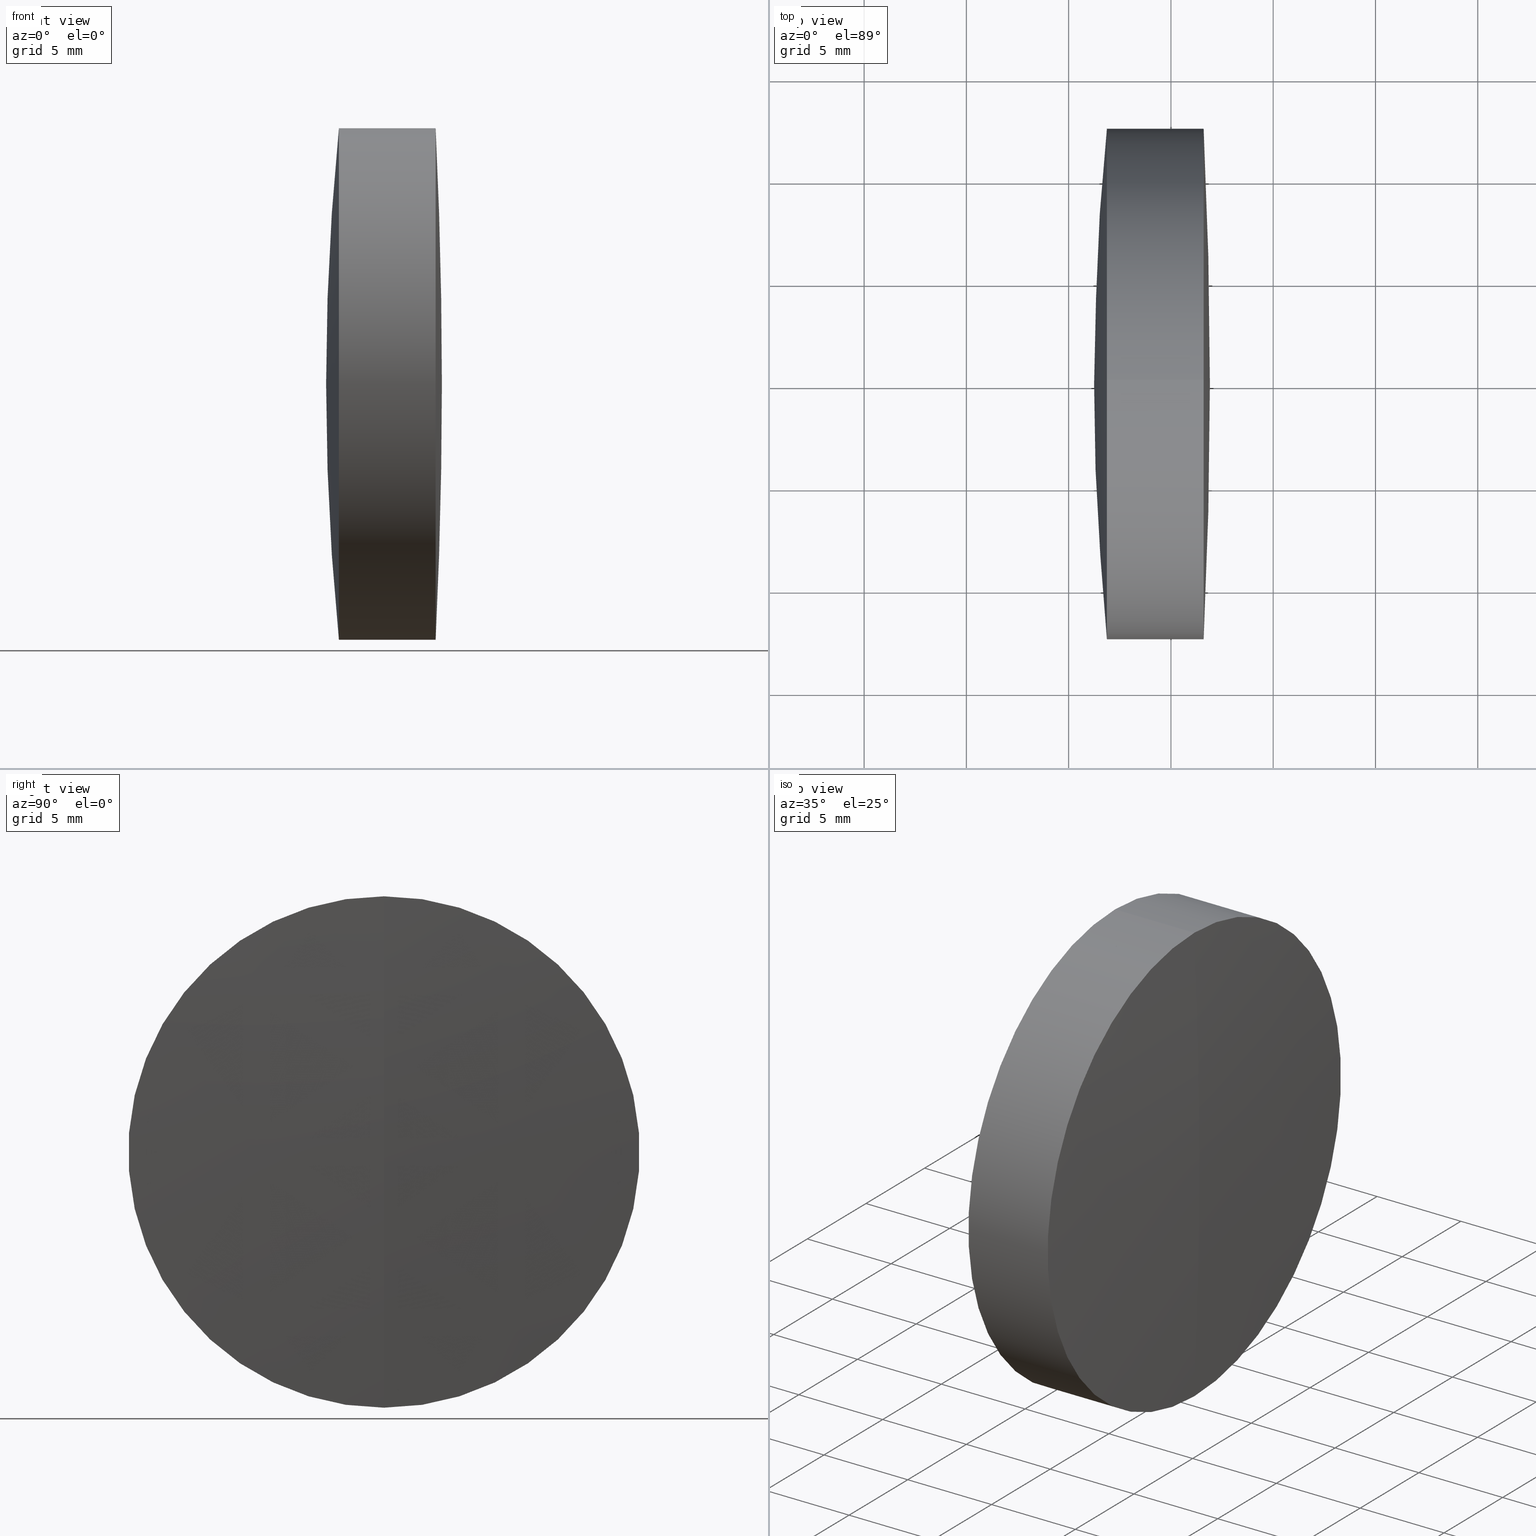
[diagram: canonical four-view strip — front | top / right | iso, engineering-drawing reading convention]
A machine part, canonical four-view strip (front | top / right | iso — engineering-drawing reading convention). The complete STEP part file that produces these views, byte-faithful:
ISO-10303-21;
HEADER;
FILE_DESCRIPTION (( 'STEP AP214' ),
    '1' );
FILE_NAME ('145045.STEP',
    '2019-05-12T06:27:24',
    ( 'user' ),
    ( '΢���й�' ),
    'SwSTEP 2.0',
    'SolidWorks 2016',
    '' );
FILE_SCHEMA (( 'AUTOMOTIVE_DESIGN' ));
ENDSEC;

DATA;
#1 = ORIENTED_EDGE ( 'NONE', *, *, #128, .F. ) ;
#2 = EDGE_LOOP ( 'NONE', ( #1, #242, #50 ) ) ;
#3 = ADVANCED_FACE ( 'NONE', ( #124 ), #106, .T. ) ;
#4 = DIRECTION ( 'NONE',  ( 0.0000000000000000000, 1.000000000000000000, 0.0000000000000000000 ) ) ;
#5 = DIRECTION ( 'NONE',  ( 0.0000000000000000000, 0.0000000000000000000, 1.000000000000000000 ) ) ;
#6 = AXIS2_PLACEMENT_3D ( 'NONE', #53, #20, #36 ) ;
#7 = DIRECTION ( 'NONE',  ( -1.000000000000000000, -0.0000000000000000000, -0.0000000000000000000 ) ) ;
#8 = FACE_OUTER_BOUND ( 'NONE', #17, .T. ) ;
#9 = EDGE_CURVE ( 'NONE', #317, #117, #212, .T. ) ;
#10 = STYLED_ITEM ( 'NONE', ( #11 ), #26 ) ;
#11 = PRESENTATION_STYLE_ASSIGNMENT (( #246 ) ) ;
#12 = DIRECTION ( 'NONE',  ( -0.0000000000000000000, 1.000000000000000000, 1.224646799147353200E-016 ) ) ;
#13 = UNCERTAINTY_MEASURE_WITH_UNIT (LENGTH_MEASURE( 1.000000000000000100E-005 ), #40, 'distance_accuracy_value', 'NONE');
#14 = SPHERICAL_SURFACE ( 'NONE', #122, 80.01500000000000100 ) ;
#15 = DIRECTION ( 'NONE',  ( -1.000000000000000000, -0.0000000000000000000, -0.0000000000000000000 ) ) ;
#16 = FACE_OUTER_BOUND ( 'NONE', #81, .T. ) ;
#17 = EDGE_LOOP ( 'NONE', ( #144, #111, #100 ) ) ;
#18 = AXIS2_PLACEMENT_3D ( 'NONE', #205, #228, #119 ) ;
#19 = ORIENTED_EDGE ( 'NONE', *, *, #152, .F. ) ;
#20 = DIRECTION ( 'NONE',  ( -1.000000000000000000, -0.0000000000000000000, -0.0000000000000000000 ) ) ;
#21 = DIRECTION ( 'NONE',  ( 0.0000000000000000000, 0.0000000000000000000, -1.000000000000000000 ) ) ;
#22 = CARTESIAN_POINT ( 'NONE',  ( 91.87023339387808100, 0.0000000000000000000, 0.0000000000000000000 ) ) ;
#23 = ORIENTED_EDGE ( 'NONE', *, *, #35, .T. ) ;
#24 = CIRCLE ( 'NONE', #277, 80.01500000000000100 ) ;
#25 = DIRECTION ( 'NONE',  ( -1.000000000000000000, -0.0000000000000000000, -0.0000000000000000000 ) ) ;
#26 = MANIFOLD_SOLID_BREP ( '��ת1', #184 ) ;
#27 = CARTESIAN_POINT ( 'NONE',  ( 93.91225861228011200, 0.0000000000000000000, 12.50000000000000000 ) ) ;
#28 = AXIS2_PLACEMENT_3D ( 'NONE', #196, #299, #135 ) ;
#29 = DIRECTION ( 'NONE',  ( -0.0000000000000000000, -1.000000000000000000, -0.0000000000000000000 ) ) ;
#30 = VERTEX_POINT ( 'NONE', #134 ) ;
#31 = CARTESIAN_POINT ( 'NONE',  ( 216.4446689735747200, 0.0000000000000000000, 3.752398377835878400E-016 ) ) ;
#32 = FILL_AREA_STYLE_COLOUR ( '', #204 ) ;
#33 = CARTESIAN_POINT ( 'NONE',  ( 14.87966897357473400, 0.0000000000000000000, 1.355252715606880500E-017 ) ) ;
#34 = PRODUCT_DEFINITION_SHAPE ( 'NONE', 'NONE',  #222 ) ;
#35 = EDGE_CURVE ( 'NONE', #59, #88, #249, .T. ) ;
#36 = DIRECTION ( 'NONE',  ( 0.0000000000000000000, 0.0000000000000000000, 1.000000000000000000 ) ) ;
#37 = ORIENTED_EDGE ( 'NONE', *, *, #75, .F. ) ;
#38 = ORIENTED_EDGE ( 'NONE', *, *, #341, .T. ) ;
#39 = CARTESIAN_POINT ( 'NONE',  ( -0.5519199926577972300, 0.0000000000000000000, 12.49999999999999300 ) ) ;
#40 =( LENGTH_UNIT ( ) NAMED_UNIT ( * ) SI_UNIT ( .MILLI., .METRE. ) );
#41 = CIRCLE ( 'NONE', #149, 12.50000000000000000 ) ;
#42 = AXIS2_PLACEMENT_3D ( 'NONE', #98, #25, #80 ) ;
#43 = CIRCLE ( 'NONE', #194, 12.50000000000000200 ) ;
#44 = ORIENTED_EDGE ( 'NONE', *, *, #128, .T. ) ;
#45 = VERTEX_POINT ( 'NONE', #56 ) ;
#46 = DIRECTION ( 'NONE',  ( 0.0000000000000000000, 1.000000000000000000, -0.0000000000000000000 ) ) ;
#47 = EDGE_CURVE ( 'NONE', #93, #317, #288, .T. ) ;
#48 = STYLED_ITEM ( 'NONE', ( #276 ), #295 ) ;
#49 = FACE_OUTER_BOUND ( 'NONE', #301, .T. ) ;
#50 = ORIENTED_EDGE ( 'NONE', *, *, #161, .T. ) ;
#51 = ADVANCED_FACE ( 'NONE', ( #8 ), #289, .T. ) ;
#52 = EDGE_CURVE ( 'NONE', #117, #30, #273, .T. ) ;
#53 = CARTESIAN_POINT ( 'NONE',  ( 93.91225861228009800, 0.0000000000000000000, 0.0000000000000000000 ) ) ;
#54 =( NAMED_UNIT ( * ) PLANE_ANGLE_UNIT ( ) SI_UNIT ( $, .RADIAN. ) );
#55 = CIRCLE ( 'NONE', #86, 12.50000000000000200 ) ;
#56 = CARTESIAN_POINT ( 'NONE',  ( 91.87023339387808100, -1.530808498934183400E-015, 12.49999999999993400 ) ) ;
#57 =( LENGTH_UNIT ( ) NAMED_UNIT ( * ) SI_UNIT ( .MILLI., .METRE. ) );
#58 = FACE_OUTER_BOUND ( 'NONE', #252, .T. ) ;
#59 = VERTEX_POINT ( 'NONE', #115 ) ;
#60 = CARTESIAN_POINT ( 'NONE',  ( 14.87966897357473400, 0.0000000000000000000, 1.355252715606880500E-017 ) ) ;
#61 = CARTESIAN_POINT ( 'NONE',  ( 216.4446689735747200, 0.0000000000000000000, 3.752398377835878400E-016 ) ) ;
#62 =( NAMED_UNIT ( * ) SI_UNIT ( $, .STERADIAN. ) SOLID_ANGLE_UNIT ( ) );
#63 =( GEOMETRIC_REPRESENTATION_CONTEXT ( 3 ) GLOBAL_UNCERTAINTY_ASSIGNED_CONTEXT ( ( #308 ) ) GLOBAL_UNIT_ASSIGNED_CONTEXT ( ( #163, #201, #131 ) ) REPRESENTATION_CONTEXT ( 'NONE', 'WORKASPACE' ) );
#64 = CARTESIAN_POINT ( 'NONE',  ( -0.5519199926577972300, 1.530808498934190500E-015, -12.49999999999999300 ) ) ;
#65 = SURFACE_SIDE_STYLE ('',( #127 ) ) ;
#66 = ORIENTED_EDGE ( 'NONE', *, *, #218, .F. ) ;
#67 = SURFACE_STYLE_USAGE ( .BOTH. , #159 ) ;
#68 = CARTESIAN_POINT ( 'NONE',  ( 14.87966897357473400, 0.0000000000000000000, 1.355252715606880500E-017 ) ) ;
#69 = CIRCLE ( 'NONE', #71, 80.01500000000000100 ) ;
#70 = ORIENTED_EDGE ( 'NONE', *, *, #341, .F. ) ;
#71 = AXIS2_PLACEMENT_3D ( 'NONE', #168, #173, #320 ) ;
#72 = ORIENTED_EDGE ( 'NONE', *, *, #214, .T. ) ;
#73 = ORIENTED_EDGE ( 'NONE', *, *, #183, .F. ) ;
#74 = CIRCLE ( 'NONE', #315, 12.50000000000000000 ) ;
#75 = EDGE_CURVE ( 'NONE', #45, #88, #55, .T. ) ;
#76 = DIRECTION ( 'NONE',  ( 0.0000000000000000000, 0.0000000000000000000, 1.000000000000000000 ) ) ;
#77 = SPHERICAL_SURFACE ( 'NONE', #280, 80.01500000000000100 ) ;
#78 = AXIS2_PLACEMENT_3D ( 'NONE', #31, #29, #160 ) ;
#79 = DIRECTION ( 'NONE',  ( -0.0000000000000000000, -1.000000000000000000, -0.0000000000000000000 ) ) ;
#80 = DIRECTION ( 'NONE',  ( 0.0000000000000000000, 0.0000000000000000000, 1.000000000000000000 ) ) ;
#81 = EDGE_LOOP ( 'NONE', ( #340, #192, #70 ) ) ;
#82 = CARTESIAN_POINT ( 'NONE',  ( 96.59932540629262100, 0.0000000000000000000, 0.0000000000000000000 ) ) ;
#83 = DIRECTION ( 'NONE',  ( 0.0000000000000000000, 0.0000000000000000000, -1.000000000000000000 ) ) ;
#84 = APPLICATION_CONTEXT ( 'automotive_design' ) ;
#85 = ORIENTED_EDGE ( 'NONE', *, *, #287, .T. ) ;
#86 = AXIS2_PLACEMENT_3D ( 'NONE', #90, #261, #323 ) ;
#87 = DIRECTION ( 'NONE',  ( 0.0000000000000000000, 0.0000000000000000000, -1.000000000000000000 ) ) ;
#88 = VERTEX_POINT ( 'NONE', #223 ) ;
#89 = EDGE_LOOP ( 'NONE', ( #211, #274, #193, #268 ) ) ;
#90 = CARTESIAN_POINT ( 'NONE',  ( 91.87023339387808100, 0.0000000000000000000, 0.0000000000000000000 ) ) ;
#91 = CARTESIAN_POINT ( 'NONE',  ( 93.91225861228009800, 0.0000000000000000000, 0.0000000000000000000 ) ) ;
#92 = AXIS2_PLACEMENT_3D ( 'NONE', #147, #265, #130 ) ;
#93 = VERTEX_POINT ( 'NONE', #136 ) ;
#94 = ORIENTED_EDGE ( 'NONE', *, *, #275, .T. ) ;
#95 = ADVANCED_FACE ( 'NONE', ( #16 ), #176, .T. ) ;
#96 = LINE ( 'NONE', #241, #156 ) ;
#97 = SURFACE_STYLE_FILL_AREA ( #148 ) ;
#98 = CARTESIAN_POINT ( 'NONE',  ( -9.702612178336682500, 0.0000000000000000000, 0.0000000000000000000 ) ) ;
#99 = CIRCLE ( 'NONE', #6, 12.50000000000005200 ) ;
#100 = ORIENTED_EDGE ( 'NONE', *, *, #287, .F. ) ;
#101 = SPHERICAL_SURFACE ( 'NONE', #140, 80.01500000000000100 ) ;
#102 = DIRECTION ( 'NONE',  ( 0.0000000000000000000, 0.0000000000000000000, 1.000000000000000000 ) ) ;
#103 = CARTESIAN_POINT ( 'NONE',  ( 216.4446689735747200, 0.0000000000000000000, 3.752398377835878400E-016 ) ) ;
#104 = DIRECTION ( 'NONE',  ( 0.0000000000000000000, 0.0000000000000000000, 1.000000000000000000 ) ) ;
#105 = AXIS2_PLACEMENT_3D ( 'NONE', #258, #224, #343 ) ;
#106 = CYLINDRICAL_SURFACE ( 'NONE', #18, 12.50000000000000000 ) ;
#107 = EDGE_LOOP ( 'NONE', ( #85, #290, #143, #347 ) ) ;
#108 = CARTESIAN_POINT ( 'NONE',  ( -159.1073310264252700, 0.0000000000000000000, 0.0000000000000000000 ) ) ;
#109 = CARTESIAN_POINT ( 'NONE',  ( 93.91225861228009800, 0.0000000000000000000, 12.50000000000006400 ) ) ;
#110 = VERTEX_POINT ( 'NONE', #158 ) ;
#111 = ORIENTED_EDGE ( 'NONE', *, *, #152, .T. ) ;
#112 = DIRECTION ( 'NONE',  ( 0.0000000000000000000, 0.0000000000000000000, 1.000000000000000000 ) ) ;
#113 = AXIS2_PLACEMENT_3D ( 'NONE', #247, #267, #104 ) ;
#114 = DIRECTION ( 'NONE',  ( 0.0000000000000000000, 0.0000000000000000000, 1.000000000000000000 ) ) ;
#115 = CARTESIAN_POINT ( 'NONE',  ( 93.91225861228011200, 1.530808498934191500E-015, -12.50000000000000000 ) ) ;
#116 = CARTESIAN_POINT ( 'NONE',  ( 93.91225861228011200, 0.0000000000000000000, 0.0000000000000000000 ) ) ;
#117 = VERTEX_POINT ( 'NONE', #109 ) ;
#118 = CARTESIAN_POINT ( 'NONE',  ( 96.59932540629262100, 1.530808498934187000E-015, -12.49999999999993200 ) ) ;
#119 = DIRECTION ( 'NONE',  ( 0.0000000000000000000, 0.0000000000000000000, 1.000000000000000000 ) ) ;
#120 = ADVANCED_FACE ( 'NONE', ( #232 ), #14, .T. ) ;
#121 = VECTOR ( 'NONE', #316, 1000.000000000000000 ) ;
#122 = AXIS2_PLACEMENT_3D ( 'NONE', #68, #346, #114 ) ;
#123 = ADVANCED_FACE ( 'NONE', ( #206 ), #77, .F. ) ;
#124 = FACE_OUTER_BOUND ( 'NONE', #89, .T. ) ;
#125 = EDGE_CURVE ( 'NONE', #170, #30, #69, .T. ) ;
#126 = PRESENTATION_LAYER_ASSIGNMENT (  '', '', ( #10 ) ) ;
#127 = SURFACE_STYLE_FILL_AREA ( #233 ) ;
#128 = EDGE_CURVE ( 'NONE', #170, #117, #24, .T. ) ;
#129 = DIRECTION ( 'NONE',  ( -1.000000000000000000, -0.0000000000000000000, -0.0000000000000000000 ) ) ;
#130 = DIRECTION ( 'NONE',  ( 0.0000000000000000000, 0.0000000000000000000, 1.000000000000000000 ) ) ;
#131 =( NAMED_UNIT ( * ) SI_UNIT ( $, .STERADIAN. ) SOLID_ANGLE_UNIT ( ) );
#132 = CLOSED_SHELL ( 'NONE', ( #51, #302, #123, #329, #202, #209 ) ) ;
#133 = CYLINDRICAL_SURFACE ( 'NONE', #113, 12.49999999999999300 ) ;
#134 = CARTESIAN_POINT ( 'NONE',  ( 93.91225861228009800, 1.530808498934199200E-015, -12.50000000000006400 ) ) ;
#135 = DIRECTION ( 'NONE',  ( 1.000000000000000000, 0.0000000000000000000, 0.0000000000000000000 ) ) ;
#136 = CARTESIAN_POINT ( 'NONE',  ( 96.90466897357480000, 0.0000000000000000000, 1.567621381716561600E-014 ) ) ;
#137 = VERTEX_POINT ( 'NONE', #118 ) ;
#138 = FACE_OUTER_BOUND ( 'NONE', #169, .T. ) ;
#139 = DIRECTION ( 'NONE',  ( 0.0000000000000000000, 0.0000000000000000000, 1.000000000000000000 ) ) ;
#140 = AXIS2_PLACEMENT_3D ( 'NONE', #150, #142, #139 ) ;
#141 = CARTESIAN_POINT ( 'NONE',  ( -9.702612178336682500, 1.530808498934191500E-015, -12.50000000000000000 ) ) ;
#142 = DIRECTION ( 'NONE',  ( 0.0000000000000000000, 1.000000000000000000, 0.0000000000000000000 ) ) ;
#143 = ORIENTED_EDGE ( 'NONE', *, *, #52, .F. ) ;
#144 = ORIENTED_EDGE ( 'NONE', *, *, #47, .F. ) ;
#145 = DIRECTION ( 'NONE',  ( 0.0000000000000000000, 0.0000000000000000000, 1.000000000000000000 ) ) ;
#146 = AXIS2_PLACEMENT_3D ( 'NONE', #332, #314, #311 ) ;
#147 = CARTESIAN_POINT ( 'NONE',  ( 14.87966897357473400, 0.0000000000000000000, 1.355252715606880500E-017 ) ) ;
#148 = FILL_AREA_STYLE ('',( #272 ) ) ;
#149 = AXIS2_PLACEMENT_3D ( 'NONE', #186, #7, #226 ) ;
#150 = CARTESIAN_POINT ( 'NONE',  ( 14.87966897357473400, 0.0000000000000000000, 1.355252715606880500E-017 ) ) ;
#151 =( NAMED_UNIT ( * ) PLANE_ANGLE_UNIT ( ) SI_UNIT ( $, .RADIAN. ) );
#152 = EDGE_CURVE ( 'NONE', #93, #137, #157, .T. ) ;
#153 = CYLINDRICAL_SURFACE ( 'NONE', #269, 12.49999999999999300 ) ;
#154 = PRODUCT ( '145045', '145045', '', ( #231 ) ) ;
#155 = EDGE_LOOP ( 'NONE', ( #333, #94, #251 ) ) ;
#156 = VECTOR ( 'NONE', #282, 1000.000000000000000 ) ;
#157 = CIRCLE ( 'NONE', #303, 256.0120000000000600 ) ;
#158 = CARTESIAN_POINT ( 'NONE',  ( 91.24466897357477500, 0.0000000000000000000, -7.291049124878839800E-015 ) ) ;
#159 = SURFACE_SIDE_STYLE ('',( #97 ) ) ;
#160 = DIRECTION ( 'NONE',  ( 0.0000000000000000000, 0.0000000000000000000, -1.000000000000000000 ) ) ;
#161 = EDGE_CURVE ( 'NONE', #30, #117, #99, .T. ) ;
#162 = DIRECTION ( 'NONE',  ( -1.000000000000000000, -0.0000000000000000000, -0.0000000000000000000 ) ) ;
#163 =( LENGTH_UNIT ( ) NAMED_UNIT ( * ) SI_UNIT ( .MILLI., .METRE. ) );
#164 = SURFACE_SIDE_STYLE ('',( #326 ) ) ;
#165 = AXIS2_PLACEMENT_3D ( 'NONE', #61, #46, #304 ) ;
#166 = EDGE_CURVE ( 'NONE', #297, #45, #96, .T. ) ;
#167 = PRESENTATION_STYLE_ASSIGNMENT (( #67 ) ) ;
#168 = CARTESIAN_POINT ( 'NONE',  ( 14.87966897357473400, 0.0000000000000000000, 1.355252715606880500E-017 ) ) ;
#169 = EDGE_LOOP ( 'NONE', ( #216, #44, #207 ) ) ;
#170 = VERTEX_POINT ( 'NONE', #189 ) ;
#171 = COLOUR_RGB ( '',1.000000000000000000, 1.000000000000000000, 1.000000000000000000 ) ;
#172 = MANIFOLD_SOLID_BREP ( '��ת3', #132 ) ;
#173 = DIRECTION ( 'NONE',  ( -0.0000000000000000000, 1.000000000000000000, 1.224646799147353200E-016 ) ) ;
#174 = DIRECTION ( 'NONE',  ( 0.0000000000000000000, 1.000000000000000000, 0.0000000000000000000 ) ) ;
#175 = ADVANCED_FACE ( 'NONE', ( #58 ), #292, .T. ) ;
#176 = SPHERICAL_SURFACE ( 'NONE', #92, 80.01500000000000100 ) ;
#177 = ORIENTED_EDGE ( 'NONE', *, *, #166, .F. ) ;
#178 = ORIENTED_EDGE ( 'NONE', *, *, #179, .F. ) ;
#179 = EDGE_CURVE ( 'NONE', #45, #110, #312, .T. ) ;
#180 =( GEOMETRIC_REPRESENTATION_CONTEXT ( 3 ) GLOBAL_UNCERTAINTY_ASSIGNED_CONTEXT ( ( #284 ) ) GLOBAL_UNIT_ASSIGNED_CONTEXT ( ( #57, #286, #210 ) ) REPRESENTATION_CONTEXT ( 'NONE', 'WORKASPACE' ) );
#181 = PRESENTATION_LAYER_ASSIGNMENT (  '', '', ( #208 ) ) ;
#182 = ORIENTED_EDGE ( 'NONE', *, *, #75, .T. ) ;
#183 = EDGE_CURVE ( 'NONE', #137, #317, #240, .T. ) ;
#184 = CLOSED_SHELL ( 'NONE', ( #95, #324, #175, #255, #3, #120 ) ) ;
#185 = FILL_AREA_STYLE_COLOUR ( '', #171 ) ;
#186 = CARTESIAN_POINT ( 'NONE',  ( 93.91225861228011200, 0.0000000000000000000, 0.0000000000000000000 ) ) ;
#187 = DIRECTION ( 'NONE',  ( 0.0000000000000000000, -1.000000000000000000, 0.0000000000000000000 ) ) ;
#188 = APPLICATION_PROTOCOL_DEFINITION ( 'draft international standard', 'automotive_design', 1998, #84 ) ;
#189 = CARTESIAN_POINT ( 'NONE',  ( 94.89466897357473800, 0.0000000000000000000, 4.913058208844842300E-015 ) ) ;
#190 = EDGE_LOOP ( 'NONE', ( #178, #182, #330 ) ) ;
#191 = COLOUR_RGB ( '',1.000000000000000000, 1.000000000000000000, 1.000000000000000000 ) ;
#192 = ORIENTED_EDGE ( 'NONE', *, *, #298, .T. ) ;
#193 = ORIENTED_EDGE ( 'NONE', *, *, #166, .T. ) ;
#194 = AXIS2_PLACEMENT_3D ( 'NONE', #22, #15, #264 ) ;
#195 = DIRECTION ( 'NONE',  ( 0.0000000000000000000, 0.0000000000000000000, 1.000000000000000000 ) ) ;
#196 = CARTESIAN_POINT ( 'NONE',  ( 0.0000000000000000000, 0.0000000000000000000, 0.0000000000000000000 ) ) ;
#197 = AXIS2_PLACEMENT_3D ( 'NONE', #239, #310, #294 ) ;
#198 =( LENGTH_UNIT ( ) NAMED_UNIT ( * ) SI_UNIT ( .MILLI., .METRE. ) );
#199 = CARTESIAN_POINT ( 'NONE',  ( -159.1073310264252700, 0.0000000000000000000, 0.0000000000000000000 ) ) ;
#200 = ORIENTED_EDGE ( 'NONE', *, *, #161, .F. ) ;
#201 =( NAMED_UNIT ( * ) PLANE_ANGLE_UNIT ( ) SI_UNIT ( $, .RADIAN. ) );
#202 = ADVANCED_FACE ( 'NONE', ( #49 ), #153, .T. ) ;
#203 = PRODUCT_DEFINITION_FORMATION_WITH_SPECIFIED_SOURCE ( '�κ�', '', #154, .NOT_KNOWN. ) ;
#204 = COLOUR_RGB ( '',1.000000000000000000, 1.000000000000000000, 1.000000000000000000 ) ;
#205 = CARTESIAN_POINT ( 'NONE',  ( -9.702612178336682500, 0.0000000000000000000, 0.0000000000000000000 ) ) ;
#206 = FACE_OUTER_BOUND ( 'NONE', #2, .T. ) ;
#207 = ORIENTED_EDGE ( 'NONE', *, *, #52, .T. ) ;
#208 = STYLED_ITEM ( 'NONE', ( #167 ), #172 ) ;
#209 = ADVANCED_FACE ( 'NONE', ( #238 ), #339, .T. ) ;
#210 =( NAMED_UNIT ( * ) SI_UNIT ( $, .STERADIAN. ) SOLID_ANGLE_UNIT ( ) );
#211 = ORIENTED_EDGE ( 'NONE', *, *, #35, .F. ) ;
#212 = LINE ( 'NONE', #39, #121 ) ;
#213 = DIRECTION ( 'NONE',  ( 0.0000000000000000000, -1.000000000000000000, 0.0000000000000000000 ) ) ;
#214 = EDGE_CURVE ( 'NONE', #88, #45, #43, .T. ) ;
#215 =( GEOMETRIC_REPRESENTATION_CONTEXT ( 3 ) GLOBAL_UNCERTAINTY_ASSIGNED_CONTEXT ( ( #345 ) ) GLOBAL_UNIT_ASSIGNED_CONTEXT ( ( #198, #54, #62 ) ) REPRESENTATION_CONTEXT ( 'NONE', 'WORKASPACE' ) );
#216 = ORIENTED_EDGE ( 'NONE', *, *, #125, .F. ) ;
#217 = AXIS2_PLACEMENT_3D ( 'NONE', #33, #12, #230 ) ;
#218 = EDGE_CURVE ( 'NONE', #137, #30, #278, .T. ) ;
#219 = CARTESIAN_POINT ( 'NONE',  ( 14.87966897357473400, 0.0000000000000000000, 1.355252715606880500E-017 ) ) ;
#220 = VECTOR ( 'NONE', #309, 1000.000000000000000 ) ;
#221 = DIRECTION ( 'NONE',  ( -1.000000000000000000, -0.0000000000000000000, -0.0000000000000000000 ) ) ;
#222 = PRODUCT_DEFINITION ( 'δ֪', '', #203, #338 ) ;
#223 = CARTESIAN_POINT ( 'NONE',  ( 91.87023339387808100, 0.0000000000000000000, -12.49999999999993400 ) ) ;
#224 = DIRECTION ( 'NONE',  ( 0.0000000000000000000, -1.000000000000000000, -1.224646799147353200E-016 ) ) ;
#225 = DIRECTION ( 'NONE',  ( 0.0000000000000000000, 0.0000000000000000000, 1.000000000000000000 ) ) ;
#226 = DIRECTION ( 'NONE',  ( 0.0000000000000000000, 0.0000000000000000000, 1.000000000000000000 ) ) ;
#227 = AXIS2_PLACEMENT_3D ( 'NONE', #82, #162, #76 ) ;
#228 = DIRECTION ( 'NONE',  ( -1.000000000000000000, -0.0000000000000000000, -0.0000000000000000000 ) ) ;
#229 = SHAPE_DEFINITION_REPRESENTATION ( #34, #295 ) ;
#230 = DIRECTION ( 'NONE',  ( 0.0000000000000000000, -1.224646799147353200E-016, 1.000000000000000000 ) ) ;
#231 = PRODUCT_CONTEXT ( 'NONE', #84, 'mechanical' ) ;
#232 = FACE_OUTER_BOUND ( 'NONE', #155, .T. ) ;
#233 = FILL_AREA_STYLE ('',( #185 ) ) ;
#234 = CARTESIAN_POINT ( 'NONE',  ( 94.89466897357473800, 0.0000000000000000000, 4.913058208844842300E-015 ) ) ;
#235 = MECHANICAL_DESIGN_GEOMETRIC_PRESENTATION_REPRESENTATION (  '', ( #48 ), #63 ) ;
#236 = CARTESIAN_POINT ( 'NONE',  ( 14.87966897357473400, 0.0000000000000000000, 1.355252715606880500E-017 ) ) ;
#237 = FACE_OUTER_BOUND ( 'NONE', #190, .T. ) ;
#238 = FACE_OUTER_BOUND ( 'NONE', #318, .T. ) ;
#239 = CARTESIAN_POINT ( 'NONE',  ( 96.59932540629262100, 0.0000000000000000000, 0.0000000000000000000 ) ) ;
#240 = CIRCLE ( 'NONE', #197, 12.49999999999993200 ) ;
#241 = CARTESIAN_POINT ( 'NONE',  ( -9.702612178336682500, 0.0000000000000000000, 12.50000000000000000 ) ) ;
#242 = ORIENTED_EDGE ( 'NONE', *, *, #125, .T. ) ;
#243 = ORIENTED_EDGE ( 'NONE', *, *, #334, .F. ) ;
#244 = FILL_AREA_STYLE ('',( #32 ) ) ;
#245 = SPHERICAL_SURFACE ( 'NONE', #78, 125.1999999999999500 ) ;
#246 = SURFACE_STYLE_USAGE ( .BOTH. , #164 ) ;
#247 = CARTESIAN_POINT ( 'NONE',  ( -0.5519199926577972300, 0.0000000000000000000, 0.0000000000000000000 ) ) ;
#248 = AXIS2_PLACEMENT_3D ( 'NONE', #91, #221, #102 ) ;
#249 = LINE ( 'NONE', #141, #220 ) ;
#250 = APPLICATION_CONTEXT ( 'automotive_design' ) ;
#251 = ORIENTED_EDGE ( 'NONE', *, *, #325, .F. ) ;
#252 = EDGE_LOOP ( 'NONE', ( #72, #293, #243 ) ) ;
#253 = PRODUCT_RELATED_PRODUCT_CATEGORY ( 'part', '', ( #154 ) ) ;
#254 = CIRCLE ( 'NONE', #217, 80.01500000000000100 ) ;
#255 = ADVANCED_FACE ( 'NONE', ( #237 ), #245, .T. ) ;
#256 = APPLICATION_PROTOCOL_DEFINITION ( 'draft international standard', 'automotive_design', 1998, #250 ) ;
#257 = AXIS2_PLACEMENT_3D ( 'NONE', #199, #174, #145 ) ;
#258 = CARTESIAN_POINT ( 'NONE',  ( 216.4446689735747200, 0.0000000000000000000, 3.752398377835878400E-016 ) ) ;
#259 = ORIENTED_EDGE ( 'NONE', *, *, #9, .T. ) ;
#260 = FACE_OUTER_BOUND ( 'NONE', #263, .T. ) ;
#261 = DIRECTION ( 'NONE',  ( -1.000000000000000000, -0.0000000000000000000, -0.0000000000000000000 ) ) ;
#262 = MECHANICAL_DESIGN_GEOMETRIC_PRESENTATION_REPRESENTATION (  '', ( #10 ), #180 ) ;
#263 = EDGE_LOOP ( 'NONE', ( #38, #23, #37, #177 ) ) ;
#264 = DIRECTION ( 'NONE',  ( 0.0000000000000000000, 0.0000000000000000000, 1.000000000000000000 ) ) ;
#265 = DIRECTION ( 'NONE',  ( 0.0000000000000000000, 1.000000000000000000, 0.0000000000000000000 ) ) ;
#266 = DIRECTION ( 'NONE',  ( -1.000000000000000000, -0.0000000000000000000, -0.0000000000000000000 ) ) ;
#267 = DIRECTION ( 'NONE',  ( -1.000000000000000000, -0.0000000000000000000, -0.0000000000000000000 ) ) ;
#268 = ORIENTED_EDGE ( 'NONE', *, *, #214, .F. ) ;
#269 = AXIS2_PLACEMENT_3D ( 'NONE', #342, #129, #225 ) ;
#270 = CIRCLE ( 'NONE', #227, 12.49999999999993200 ) ;
#271 = DIRECTION ( 'NONE',  ( 0.0000000000000000000, -1.224646799147353500E-016, 1.000000000000000000 ) ) ;
#272 = FILL_AREA_STYLE_COLOUR ( '', #191 ) ;
#273 = CIRCLE ( 'NONE', #248, 12.50000000000005200 ) ;
#274 = ORIENTED_EDGE ( 'NONE', *, *, #325, .T. ) ;
#275 = EDGE_CURVE ( 'NONE', #283, #297, #279, .T. ) ;
#276 = PRESENTATION_STYLE_ASSIGNMENT (( #327 ) ) ;
#277 = AXIS2_PLACEMENT_3D ( 'NONE', #219, #213, #83 ) ;
#278 = LINE ( 'NONE', #64, #281 ) ;
#279 = CIRCLE ( 'NONE', #328, 80.01500000000000100 ) ;
#280 = AXIS2_PLACEMENT_3D ( 'NONE', #60, #4, #195 ) ;
#281 = VECTOR ( 'NONE', #266, 1000.000000000000000 ) ;
#282 = DIRECTION ( 'NONE',  ( -1.000000000000000000, -0.0000000000000000000, -0.0000000000000000000 ) ) ;
#283 = VERTEX_POINT ( 'NONE', #234 ) ;
#284 = UNCERTAINTY_MEASURE_WITH_UNIT (LENGTH_MEASURE( 1.000000000000000100E-005 ), #57, 'distance_accuracy_value', 'NONE');
#285 = FACE_OUTER_BOUND ( 'NONE', #107, .T. ) ;
#286 =( NAMED_UNIT ( * ) PLANE_ANGLE_UNIT ( ) SI_UNIT ( $, .RADIAN. ) );
#287 = EDGE_CURVE ( 'NONE', #317, #137, #270, .T. ) ;
#288 = CIRCLE ( 'NONE', #146, 256.0120000000000600 ) ;
#289 = SPHERICAL_SURFACE ( 'NONE', #257, 256.0120000000000600 ) ;
#290 = ORIENTED_EDGE ( 'NONE', *, *, #218, .T. ) ;
#291 =( GEOMETRIC_REPRESENTATION_CONTEXT ( 3 ) GLOBAL_UNCERTAINTY_ASSIGNED_CONTEXT ( ( #13 ) ) GLOBAL_UNIT_ASSIGNED_CONTEXT ( ( #40, #151, #300 ) ) REPRESENTATION_CONTEXT ( 'NONE', 'WORKASPACE' ) );
#292 = SPHERICAL_SURFACE ( 'NONE', #335, 125.1999999999999500 ) ;
#293 = ORIENTED_EDGE ( 'NONE', *, *, #179, .T. ) ;
#294 = DIRECTION ( 'NONE',  ( 0.0000000000000000000, 0.0000000000000000000, 1.000000000000000000 ) ) ;
#295 = ADVANCED_BREP_SHAPE_REPRESENTATION ( '145045', ( #26, #172, #28 ), #291 ) ;
#296 = CARTESIAN_POINT ( 'NONE',  ( -159.1073310264252700, 0.0000000000000000000, 0.0000000000000000000 ) ) ;
#297 = VERTEX_POINT ( 'NONE', #27 ) ;
#298 = EDGE_CURVE ( 'NONE', #283, #59, #254, .T. ) ;
#299 = DIRECTION ( 'NONE',  ( 0.0000000000000000000, 0.0000000000000000000, 1.000000000000000000 ) ) ;
#300 =( NAMED_UNIT ( * ) SI_UNIT ( $, .STERADIAN. ) SOLID_ANGLE_UNIT ( ) );
#301 = EDGE_LOOP ( 'NONE', ( #66, #306, #259, #200 ) ) ;
#302 = ADVANCED_FACE ( 'NONE', ( #285 ), #133, .T. ) ;
#303 = AXIS2_PLACEMENT_3D ( 'NONE', #108, #322, #271 ) ;
#304 = DIRECTION ( 'NONE',  ( 0.0000000000000000000, 0.0000000000000000000, 1.000000000000000000 ) ) ;
#305 = DIRECTION ( 'NONE',  ( -1.000000000000000000, -0.0000000000000000000, -0.0000000000000000000 ) ) ;
#306 = ORIENTED_EDGE ( 'NONE', *, *, #183, .T. ) ;
#307 = CIRCLE ( 'NONE', #165, 125.1999999999999500 ) ;
#308 = UNCERTAINTY_MEASURE_WITH_UNIT (LENGTH_MEASURE( 1.000000000000000100E-005 ), #163, 'distance_accuracy_value', 'NONE');
#309 = DIRECTION ( 'NONE',  ( -1.000000000000000000, -0.0000000000000000000, -0.0000000000000000000 ) ) ;
#310 = DIRECTION ( 'NONE',  ( -1.000000000000000000, -0.0000000000000000000, -0.0000000000000000000 ) ) ;
#311 = DIRECTION ( 'NONE',  ( 0.0000000000000000000, 0.0000000000000000000, -1.000000000000000000 ) ) ;
#312 = CIRCLE ( 'NONE', #105, 125.1999999999999500 ) ;
#313 = ORIENTED_EDGE ( 'NONE', *, *, #47, .T. ) ;
#314 = DIRECTION ( 'NONE',  ( 0.0000000000000000000, -1.000000000000000000, 0.0000000000000000000 ) ) ;
#315 = AXIS2_PLACEMENT_3D ( 'NONE', #116, #305, #5 ) ;
#316 = DIRECTION ( 'NONE',  ( -1.000000000000000000, -0.0000000000000000000, -0.0000000000000000000 ) ) ;
#317 = VERTEX_POINT ( 'NONE', #337 ) ;
#318 = EDGE_LOOP ( 'NONE', ( #19, #313, #73 ) ) ;
#319 = PRESENTATION_LAYER_ASSIGNMENT (  '', '', ( #48 ) ) ;
#320 = DIRECTION ( 'NONE',  ( 0.0000000000000000000, -1.224646799147353200E-016, 1.000000000000000000 ) ) ;
#321 = CYLINDRICAL_SURFACE ( 'NONE', #42, 12.50000000000000000 ) ;
#322 = DIRECTION ( 'NONE',  ( -0.0000000000000000000, 1.000000000000000000, 1.224646799147353200E-016 ) ) ;
#323 = DIRECTION ( 'NONE',  ( 0.0000000000000000000, 0.0000000000000000000, 1.000000000000000000 ) ) ;
#324 = ADVANCED_FACE ( 'NONE', ( #260 ), #321, .T. ) ;
#325 = EDGE_CURVE ( 'NONE', #59, #297, #41, .T. ) ;
#326 = SURFACE_STYLE_FILL_AREA ( #244 ) ;
#327 = SURFACE_STYLE_USAGE ( .BOTH. , #65 ) ;
#328 = AXIS2_PLACEMENT_3D ( 'NONE', #236, #187, #21 ) ;
#329 = ADVANCED_FACE ( 'NONE', ( #138 ), #101, .F. ) ;
#330 = ORIENTED_EDGE ( 'NONE', *, *, #334, .T. ) ;
#331 = AXIS2_PLACEMENT_3D ( 'NONE', #296, #336, #112 ) ;
#332 = CARTESIAN_POINT ( 'NONE',  ( -159.1073310264252700, 0.0000000000000000000, 0.0000000000000000000 ) ) ;
#333 = ORIENTED_EDGE ( 'NONE', *, *, #298, .F. ) ;
#334 = EDGE_CURVE ( 'NONE', #88, #110, #307, .T. ) ;
#335 = AXIS2_PLACEMENT_3D ( 'NONE', #103, #79, #87 ) ;
#336 = DIRECTION ( 'NONE',  ( 0.0000000000000000000, 1.000000000000000000, 0.0000000000000000000 ) ) ;
#337 = CARTESIAN_POINT ( 'NONE',  ( 96.59932540629262100, 0.0000000000000000000, 12.49999999999993200 ) ) ;
#338 = PRODUCT_DEFINITION_CONTEXT ( 'detailed design', #250, 'design' ) ;
#339 = SPHERICAL_SURFACE ( 'NONE', #331, 256.0120000000000600 ) ;
#340 = ORIENTED_EDGE ( 'NONE', *, *, #275, .F. ) ;
#341 = EDGE_CURVE ( 'NONE', #297, #59, #74, .T. ) ;
#342 = CARTESIAN_POINT ( 'NONE',  ( -0.5519199926577972300, 0.0000000000000000000, 0.0000000000000000000 ) ) ;
#343 = DIRECTION ( 'NONE',  ( 0.0000000000000000000, 1.224646799147353200E-016, -1.000000000000000000 ) ) ;
#344 = MECHANICAL_DESIGN_GEOMETRIC_PRESENTATION_REPRESENTATION (  '', ( #208 ), #215 ) ;
#345 = UNCERTAINTY_MEASURE_WITH_UNIT (LENGTH_MEASURE( 1.000000000000000100E-005 ), #198, 'distance_accuracy_value', 'NONE');
#346 = DIRECTION ( 'NONE',  ( 0.0000000000000000000, 1.000000000000000000, 0.0000000000000000000 ) ) ;
#347 = ORIENTED_EDGE ( 'NONE', *, *, #9, .F. ) ;
ENDSEC;
END-ISO-10303-21;
